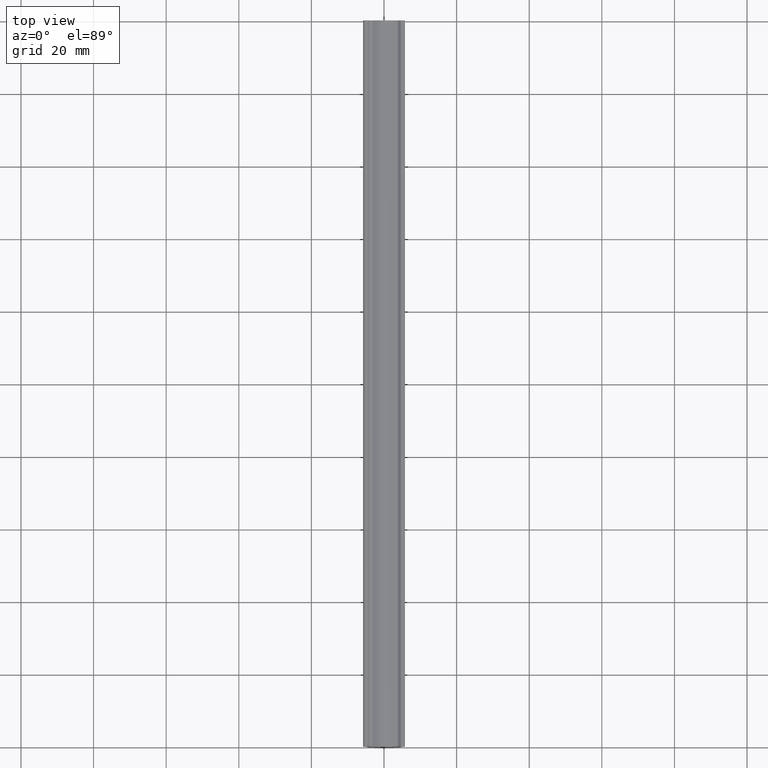
[diagram: clean part render]
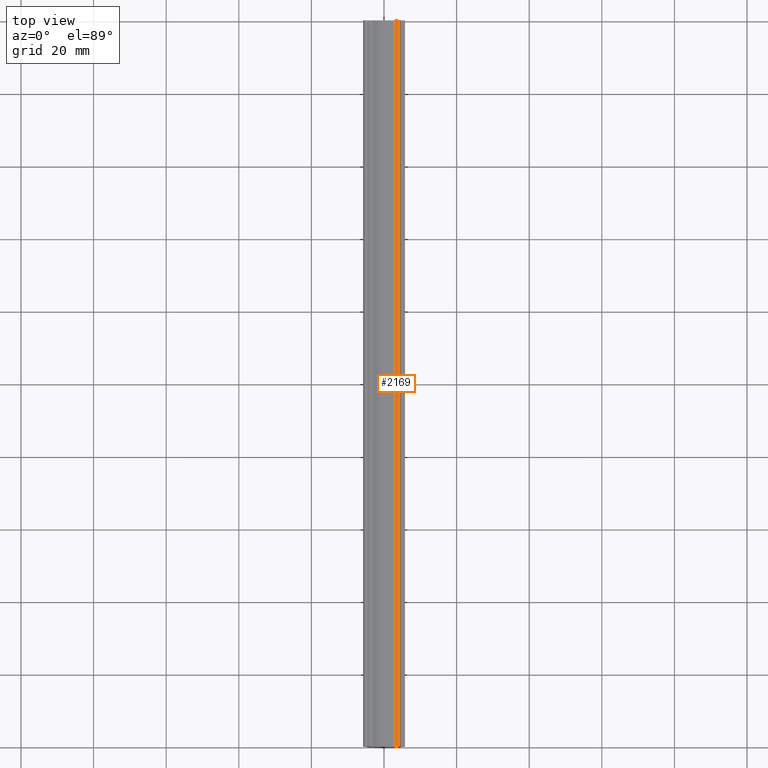
[diagram: same view with one face highlighted and labeled with its STEP entity id]
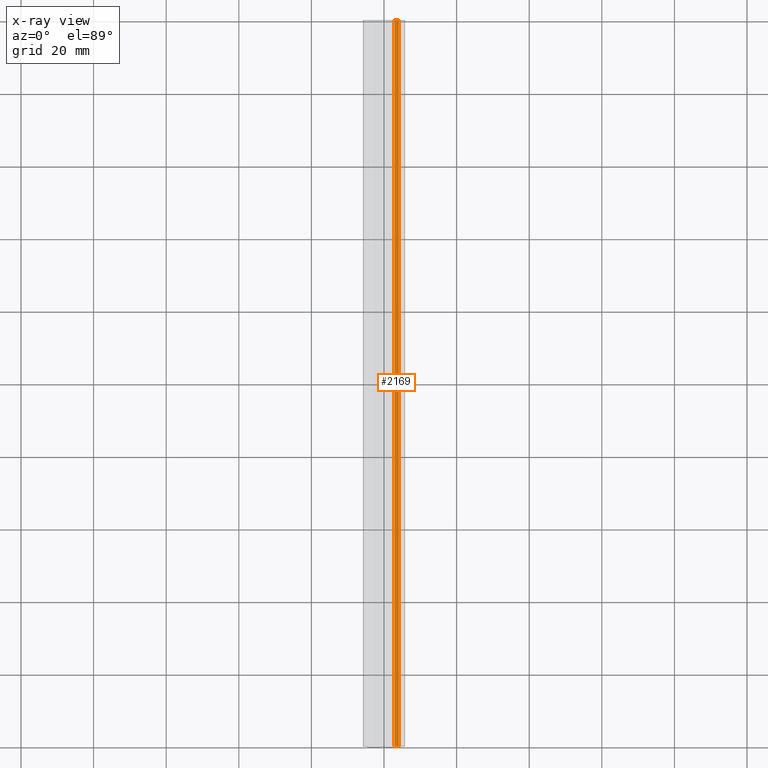
[diagram: x-ray of the same camera — body ghosted, the highlighted face saturated]
A machine part, top view. The second image highlights one B-rep face of the part: STEP entity #2169.
The next image is the same camera in x-ray: the body ghosted, the highlighted face saturated — about 0% of this face is hidden behind the body in this view.
In plain terms, the highlighted face is a freeform B-spline surface patch.
Its self-contained STEP definition (entity closure, byte-faithful):
#472=CARTESIAN_POINT('',(4.052245609067785,0.0,-0.637094224121343));
#473=VERTEX_POINT('',#472);
#479=CARTESIAN_POINT('',(2.901170373201485,0.0,-0.785555365343712));
#480=VERTEX_POINT('',#479);
#481=CARTESIAN_POINT('',(2.901170373201485,0.0,-0.785555365343712));
#482=CARTESIAN_POINT('',(3.533978120436695,0.0,-1.155361712754881));
#483=CARTESIAN_POINT('',(4.052245609067786,0.0,-0.637094224121344));
#491=(BOUNDED_CURVE()B_SPLINE_CURVE(2,(#481,#482,#483),.UNSPECIFIED.,.F.,.U.)CURVE()GEOMETRIC_REPRESENTATION_ITEM()QUASI_UNIFORM_CURVE()RATIONAL_B_SPLINE_CURVE((1.0,0.791748490528349,1.0))REPRESENTATION_ITEM(''));
#492=EDGE_CURVE('',#480,#473,#491,.T.);
#930=CARTESIAN_POINT('',(2.901170373201485,200.0,-0.785555365343712));
#931=VERTEX_POINT('',#930);
#945=CARTESIAN_POINT('',(4.052245609067785,200.0,-0.637094224121343));
#946=VERTEX_POINT('',#945);
#947=CARTESIAN_POINT('',(2.901170373201485,200.0,-0.785555365343712));
#948=CARTESIAN_POINT('',(3.533978120436695,200.0,-1.155361712754881));
#949=CARTESIAN_POINT('',(4.052245609067786,200.0,-0.637094224121344));
#957=(BOUNDED_CURVE()B_SPLINE_CURVE(2,(#947,#948,#949),.UNSPECIFIED.,.F.,.U.)CURVE()GEOMETRIC_REPRESENTATION_ITEM()QUASI_UNIFORM_CURVE()RATIONAL_B_SPLINE_CURVE((1.0,0.791748490528349,1.0))REPRESENTATION_ITEM(''));
#958=EDGE_CURVE('',#931,#946,#957,.T.);
#2137=CARTESIAN_POINT('',(4.052245609067785,200.0,-0.637094224121343));
#2138=CARTESIAN_POINT('',(4.052245609067785,0.0,-0.637094224121343));
#2139=QUASI_UNIFORM_CURVE('',1,(#2137,#2138),.UNSPECIFIED.,.F.,.U.);
#2140=EDGE_CURVE('',#946,#473,#2139,.T.);
#2145=CARTESIAN_POINT('',(4.077519787471973,205.0,-0.610831189576044));
#2146=CARTESIAN_POINT('',(4.077519787471973,-5.125000000000000,-0.610831189576044));
#2147=CARTESIAN_POINT('',(3.526376102605224,205.000000000000030,-1.205979397406989));
#2148=CARTESIAN_POINT('',(3.526376102605224,-5.125000000000000,-1.205979397406989));
#2149=CARTESIAN_POINT('',(2.852211588336020,205.000000000000090,-0.754910712667012));
#2150=CARTESIAN_POINT('',(2.852211588336020,-5.125000000000000,-0.754910712667012));
#2158=(BOUNDED_SURFACE()B_SPLINE_SURFACE(1,2,((#2145,#2147,#2149),(#2146,#2148,#2150)),.UNSPECIFIED.,.F.,.F.,.U.)B_SPLINE_SURFACE_WITH_KNOTS((2,2),(3,3),(0.0,210.125000000000000),(0.0,0.986530339009035),.UNSPECIFIED.)GEOMETRIC_REPRESENTATION_ITEM()RATIONAL_B_SPLINE_SURFACE(((1.0,0.758013559021503,0.993481049351219),(1.0,0.758013559021503,0.993481049351219)))REPRESENTATION_ITEM('')SURFACE());
#2159=ORIENTED_EDGE('',*,*,#492,.T.);
#2160=ORIENTED_EDGE('',*,*,#2140,.F.);
#2161=ORIENTED_EDGE('',*,*,#958,.F.);
#2162=CARTESIAN_POINT('',(2.901170373201485,200.0,-0.785555365343712));
#2163=CARTESIAN_POINT('',(2.901170373201485,0.0,-0.785555365343712));
#2164=QUASI_UNIFORM_CURVE('',1,(#2162,#2163),.UNSPECIFIED.,.F.,.U.);
#2165=EDGE_CURVE('',#931,#480,#2164,.T.);
#2166=ORIENTED_EDGE('',*,*,#2165,.T.);
#2167=EDGE_LOOP('',(#2159,#2160,#2161,#2166));
#2168=FACE_OUTER_BOUND('',#2167,.T.);
#2169=ADVANCED_FACE('',(#2168),#2158,.F.);